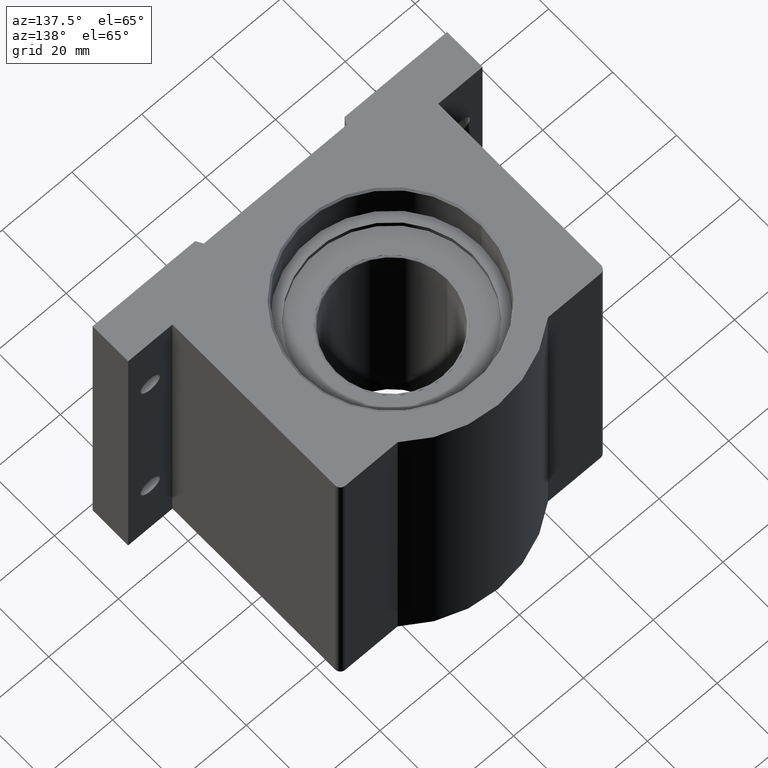
[diagram: clean part render]
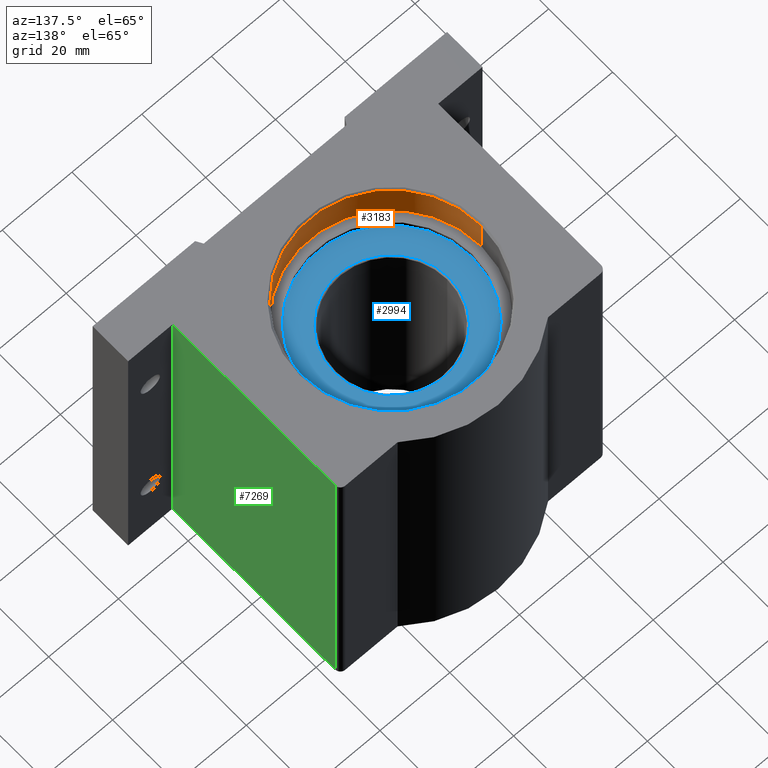
[diagram: same view with three faces highlighted in distinct colors, each labeled with its STEP entity id]
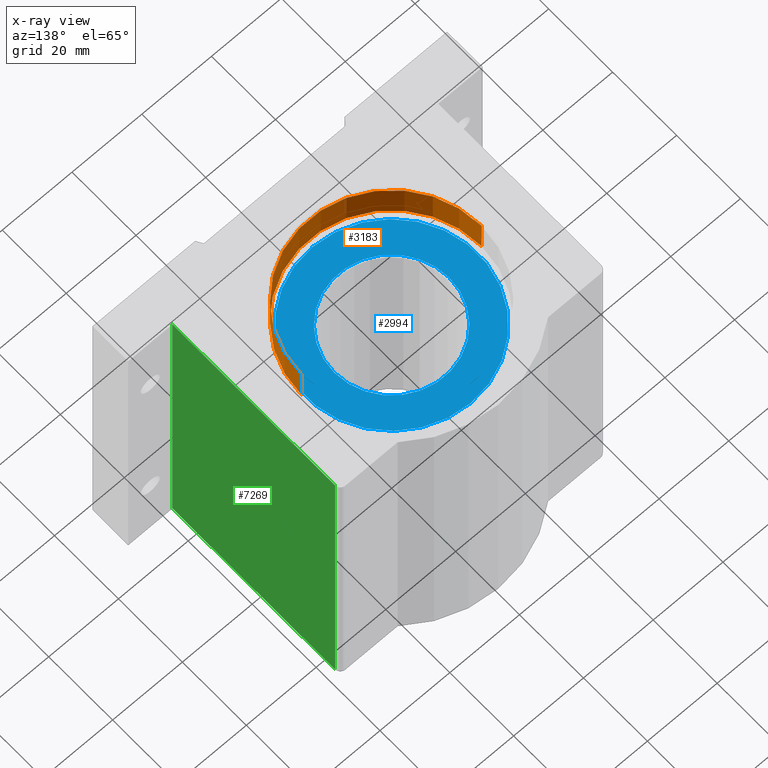
[diagram: x-ray of the same camera — body ghosted, the three highlighted faces saturated]
A machine part, auxiliary view with three faces highlighted in distinct colors.
The next image is the same camera in x-ray (body ghosted, the three faces saturated) — at least one of them is partly hidden behind the body in this view.
Their STEP definitions:

[orange] entity #3183 — the highlighted cylindrical surface (partial cylindrical patch) has radius 25.7556 mm, axis along (0, 0, 1).
#184 = EDGE_CURVE ( 'NONE', #5739, #4479, #7375, .T. ) ;
#593 = VECTOR ( 'NONE', #7757, 39.37007874015748143 ) ;
#599 = DIRECTION ( 'NONE',  ( -0.000000000000000000, -0.000000000000000000, 1.000000000000000000 ) ) ;
#728 = DIRECTION ( 'NONE',  ( 1.000000000000000000, 0.000000000000000000, 0.000000000000000000 ) ) ;
#1041 = VERTEX_POINT ( 'NONE', #3347 ) ;
#1157 = ORIENTED_EDGE ( 'NONE', *, *, #3776, .T. ) ;
#1169 = DIRECTION ( 'NONE',  ( 1.000000000000000000, 0.000000000000000000, 0.000000000000000000 ) ) ;
#1690 = FACE_OUTER_BOUND ( 'NONE', #3474, .T. ) ;
#1785 = CIRCLE ( 'NONE', #2037, 1.014000000000000012 ) ;
#2033 = ORIENTED_EDGE ( 'NONE', *, *, #184, .T. ) ;
#2037 = AXIS2_PLACEMENT_3D ( 'NONE', #2055, #6960, #3360 ) ;
#2055 = CARTESIAN_POINT ( 'NONE',  ( 0.000000000000000000, 0.000000000000000000, 1.393252075382097388 ) ) ;
#2112 = DIRECTION ( 'NONE',  ( -0.000000000000000000, -0.000000000000000000, 1.000000000000000000 ) ) ;
#2366 = CARTESIAN_POINT ( 'NONE',  ( -1.014000000000000012, 1.241791854335416114E-16, 1.792500000000000648 ) ) ;
#2537 = ORIENTED_EDGE ( 'NONE', *, *, #3590, .T. ) ;
#2608 = CARTESIAN_POINT ( 'NONE',  ( 1.014000000000000012, 0.000000000000000000, 1.393252075382097388 ) ) ;
#2652 = CARTESIAN_POINT ( 'NONE',  ( -1.014000000000000012, 1.241791854335416114E-16, 1.393252075382097388 ) ) ;
#2673 = EDGE_CURVE ( 'NONE', #7237, #1041, #6509, .T. ) ;
#2939 = CYLINDRICAL_SURFACE ( 'NONE', #5037, 1.014000000000000012 ) ;
#3074 = CIRCLE ( 'NONE', #3473, 1.014000000000000012 ) ;
#3183 = ADVANCED_FACE ( 'NONE', ( #1690 ), #2939, .F. ) ;
#3347 = CARTESIAN_POINT ( 'NONE',  ( 1.014000000000000012, 0.000000000000000000, 1.792500000000000648 ) ) ;
#3360 = DIRECTION ( 'NONE',  ( 1.000000000000000000, 0.000000000000000000, 0.000000000000000000 ) ) ;
#3372 = VECTOR ( 'NONE', #599, 39.37007874015748143 ) ;
#3473 = AXIS2_PLACEMENT_3D ( 'NONE', #3605, #8049, #1169 ) ;
#3474 = EDGE_LOOP ( 'NONE', ( #1157, #2033, #2537, #7001 ) ) ;
#3590 = EDGE_CURVE ( 'NONE', #4479, #1041, #3074, .T. ) ;
#3605 = CARTESIAN_POINT ( 'NONE',  ( 0.000000000000000000, 0.000000000000000000, 1.792500000000000648 ) ) ;
#3776 = EDGE_CURVE ( 'NONE', #7237, #5739, #1785, .T. ) ;
#4376 = CARTESIAN_POINT ( 'NONE',  ( -1.014000000000000012, 1.241791854335416114E-16, -1.812501968503936967 ) ) ;
#4479 = VERTEX_POINT ( 'NONE', #2366 ) ;
#5037 = AXIS2_PLACEMENT_3D ( 'NONE', #6276, #2112, #728 ) ;
#5739 = VERTEX_POINT ( 'NONE', #2652 ) ;
#6276 = CARTESIAN_POINT ( 'NONE',  ( 0.000000000000000000, 0.000000000000000000, -1.812501968503936967 ) ) ;
#6509 = LINE ( 'NONE', #7721, #593 ) ;
#6960 = DIRECTION ( 'NONE',  ( 0.000000000000000000, 0.000000000000000000, -1.000000000000000000 ) ) ;
#7001 = ORIENTED_EDGE ( 'NONE', *, *, #2673, .F. ) ;
#7237 = VERTEX_POINT ( 'NONE', #2608 ) ;
#7375 = LINE ( 'NONE', #4376, #3372 ) ;
#7721 = CARTESIAN_POINT ( 'NONE',  ( 1.014000000000000012, 0.000000000000000000, -1.812501968503936967 ) ) ;
#7757 = DIRECTION ( 'NONE',  ( -0.000000000000000000, -0.000000000000000000, 1.000000000000000000 ) ) ;
#8049 = DIRECTION ( 'NONE',  ( 0.000000000000000000, 0.000000000000000000, 1.000000000000000000 ) ) ;

[blue] entity #2994 — the highlighted planar face has unit normal (0, -0, -1).
#59 = AXIS2_PLACEMENT_3D ( 'NONE', #6602, #1096, #4132 ) ;
#594 = CARTESIAN_POINT ( 'NONE',  ( -0.000000000000000000, -9.697511370437362114E-17, 1.308750000000000080 ) ) ;
#850 = DIRECTION ( 'NONE',  ( 0.000000000000000000, 1.000000000000000000, -2.807582532477853317E-16 ) ) ;
#1096 = DIRECTION ( 'NONE',  ( -0.000000000000000000, -7.409750808357105022E-17, 1.000000000000000000 ) ) ;
#1406 = EDGE_CURVE ( 'NONE', #6870, #3545, #4349, .T. ) ;
#1637 = AXIS2_PLACEMENT_3D ( 'NONE', #2038, #6574, #6452 ) ;
#2038 = CARTESIAN_POINT ( 'NONE',  ( 0.000000000000000000, 0.9730249999999999178, 1.308749999999999858 ) ) ;
#2090 = EDGE_CURVE ( 'NONE', #4705, #4222, #5130, .T. ) ;
#2204 = EDGE_LOOP ( 'NONE', ( #7924, #5658 ) ) ;
#2343 = CARTESIAN_POINT ( 'NONE',  ( -0.6474999999999999645, 0.000000000000000000, 1.308750000000000080 ) ) ;
#2994 = ADVANCED_FACE ( 'NONE', ( #5260, #6538 ), #3946, .F. ) ;
#3068 = DIRECTION ( 'NONE',  ( 0.000000000000000000, 1.000000000000000000, -2.807582532477853317E-16 ) ) ;
#3130 = CARTESIAN_POINT ( 'NONE',  ( 0.000000000000000000, 0.000000000000000000, 1.308750000000000080 ) ) ;
#3301 = AXIS2_PLACEMENT_3D ( 'NONE', #594, #7522, #3068 ) ;
#3500 = CARTESIAN_POINT ( 'NONE',  ( 0.000000000000000000, 0.9730249999999999178, 1.308749999999999858 ) ) ;
#3545 = VERTEX_POINT ( 'NONE', #4760 ) ;
#3946 = PLANE ( 'NONE',  #1637 ) ;
#4132 = DIRECTION ( 'NONE',  ( 0.000000000000000000, -1.000000000000000000, 0.000000000000000000 ) ) ;
#4222 = VERTEX_POINT ( 'NONE', #3500 ) ;
#4331 = AXIS2_PLACEMENT_3D ( 'NONE', #6339, #7528, #850 ) ;
#4349 = CIRCLE ( 'NONE', #59, 0.6474999999999999645 ) ;
#4441 = EDGE_CURVE ( 'NONE', #3545, #6870, #5966, .T. ) ;
#4527 = AXIS2_PLACEMENT_3D ( 'NONE', #3130, #7392, #6081 ) ;
#4705 = VERTEX_POINT ( 'NONE', #7695 ) ;
#4760 = CARTESIAN_POINT ( 'NONE',  ( 0.6474999999999999645, 7.929588024479112331E-17, 1.308750000000000080 ) ) ;
#4861 = CIRCLE ( 'NONE', #4331, 0.9730250000000000288 ) ;
#5130 = CIRCLE ( 'NONE', #3301, 0.9730250000000000288 ) ;
#5260 = FACE_OUTER_BOUND ( 'NONE', #7835, .T. ) ;
#5658 = ORIENTED_EDGE ( 'NONE', *, *, #4441, .F. ) ;
#5966 = CIRCLE ( 'NONE', #4527, 0.6474999999999999645 ) ;
#6081 = DIRECTION ( 'NONE',  ( 0.000000000000000000, -1.000000000000000000, 0.000000000000000000 ) ) ;
#6339 = CARTESIAN_POINT ( 'NONE',  ( -0.000000000000000000, -9.697511370437362114E-17, 1.308750000000000080 ) ) ;
#6420 = ORIENTED_EDGE ( 'NONE', *, *, #2090, .T. ) ;
#6452 = DIRECTION ( 'NONE',  ( 0.000000000000000000, 1.000000000000000000, -1.479470968414602948E-16 ) ) ;
#6538 = FACE_BOUND ( 'NONE', #2204, .T. ) ;
#6574 = DIRECTION ( 'NONE',  ( 0.000000000000000000, -1.479470968414602948E-16, -1.000000000000000000 ) ) ;
#6602 = CARTESIAN_POINT ( 'NONE',  ( 0.000000000000000000, 0.000000000000000000, 1.308750000000000080 ) ) ;
#6870 = VERTEX_POINT ( 'NONE', #2343 ) ;
#7392 = DIRECTION ( 'NONE',  ( -0.000000000000000000, -7.409750808357105022E-17, 1.000000000000000000 ) ) ;
#7522 = DIRECTION ( 'NONE',  ( 0.000000000000000000, -7.409750808357105022E-17, 1.000000000000000000 ) ) ;
#7528 = DIRECTION ( 'NONE',  ( 0.000000000000000000, -7.409750808357105022E-17, 1.000000000000000000 ) ) ;
#7695 = CARTESIAN_POINT ( 'NONE',  ( 1.207838521829055843E-16, -0.9730250000000002508, 1.308750000000000080 ) ) ;
#7778 = EDGE_CURVE ( 'NONE', #4222, #4705, #4861, .T. ) ;
#7835 = EDGE_LOOP ( 'NONE', ( #7999, #6420 ) ) ;
#7924 = ORIENTED_EDGE ( 'NONE', *, *, #1406, .F. ) ;
#7999 = ORIENTED_EDGE ( 'NONE', *, *, #7778, .T. ) ;

[green] entity #7269 — the highlighted planar face has unit normal (-1, 0, 0).
#268 = VECTOR ( 'NONE', #3717, 39.37007874015748143 ) ;
#332 = DIRECTION ( 'NONE',  ( 0.000000000000000000, 0.000000000000000000, 1.000000000000000000 ) ) ;
#533 = DIRECTION ( 'NONE',  ( 0.000000000000000000, -1.000000000000000000, 0.000000000000000000 ) ) ;
#616 = CARTESIAN_POINT ( 'NONE',  ( 1.499999999999999778, 0.000000000000000000, 1.812499999999999778 ) ) ;
#649 = EDGE_CURVE ( 'NONE', #2568, #3129, #4630, .T. ) ;
#695 = ORIENTED_EDGE ( 'NONE', *, *, #649, .F. ) ;
#785 = PLANE ( 'NONE',  #1473 ) ;
#1425 = ORIENTED_EDGE ( 'NONE', *, *, #4369, .F. ) ;
#1473 = AXIS2_PLACEMENT_3D ( 'NONE', #4223, #4771, #332 ) ;
#1528 = DIRECTION ( 'NONE',  ( 0.000000000000000000, -1.000000000000000000, 0.000000000000000000 ) ) ;
#1576 = VECTOR ( 'NONE', #533, 39.37007874015748143 ) ;
#1589 = ORIENTED_EDGE ( 'NONE', *, *, #5895, .T. ) ;
#1919 = VECTOR ( 'NONE', #4228, 39.37007874015748143 ) ;
#1923 = VERTEX_POINT ( 'NONE', #6461 ) ;
#2458 = CARTESIAN_POINT ( 'NONE',  ( 1.499999999999999778, 0.9399999999999999467, -1.812499999999999778 ) ) ;
#2567 = LINE ( 'NONE', #5541, #268 ) ;
#2568 = VERTEX_POINT ( 'NONE', #2458 ) ;
#2581 = ORIENTED_EDGE ( 'NONE', *, *, #6178, .T. ) ;
#3090 = CARTESIAN_POINT ( 'NONE',  ( 1.499999999999999778, -1.062999999999999501, -2.489883938398306462 ) ) ;
#3129 = VERTEX_POINT ( 'NONE', #5977 ) ;
#3717 = DIRECTION ( 'NONE',  ( 0.000000000000000000, 0.000000000000000000, 1.000000000000000000 ) ) ;
#3819 = VECTOR ( 'NONE', #1528, 39.37007874015748143 ) ;
#4194 = EDGE_LOOP ( 'NONE', ( #695, #2581, #1589, #1425 ) ) ;
#4223 = CARTESIAN_POINT ( 'NONE',  ( 1.499999999999999778, 0.000000000000000000, -1.812499999999999778 ) ) ;
#4228 = DIRECTION ( 'NONE',  ( 0.000000000000000000, 0.000000000000000000, 1.000000000000000000 ) ) ;
#4369 = EDGE_CURVE ( 'NONE', #3129, #6051, #5017, .T. ) ;
#4585 = CARTESIAN_POINT ( 'NONE',  ( 1.499999999999999778, 0.000000000000000000, -1.812499999999999778 ) ) ;
#4630 = LINE ( 'NONE', #4585, #3819 ) ;
#4771 = DIRECTION ( 'NONE',  ( -1.000000000000000000, 0.000000000000000000, 0.000000000000000000 ) ) ;
#5017 = LINE ( 'NONE', #3090, #1919 ) ;
#5541 = CARTESIAN_POINT ( 'NONE',  ( 1.499999999999999778, 0.9399999999999999467, -1.812499999999999778 ) ) ;
#5895 = EDGE_CURVE ( 'NONE', #1923, #6051, #6902, .T. ) ;
#5977 = CARTESIAN_POINT ( 'NONE',  ( 1.499999999999999778, -1.062999999999999501, -1.812499999999999778 ) ) ;
#6051 = VERTEX_POINT ( 'NONE', #7659 ) ;
#6178 = EDGE_CURVE ( 'NONE', #2568, #1923, #2567, .T. ) ;
#6369 = FACE_OUTER_BOUND ( 'NONE', #4194, .T. ) ;
#6461 = CARTESIAN_POINT ( 'NONE',  ( 1.499999999999999778, 0.9399999999999999467, 1.812499999999999778 ) ) ;
#6902 = LINE ( 'NONE', #616, #1576 ) ;
#7269 = ADVANCED_FACE ( 'NONE', ( #6369 ), #785, .F. ) ;
#7659 = CARTESIAN_POINT ( 'NONE',  ( 1.499999999999999778, -1.062999999999999501, 1.812499999999999778 ) ) ;